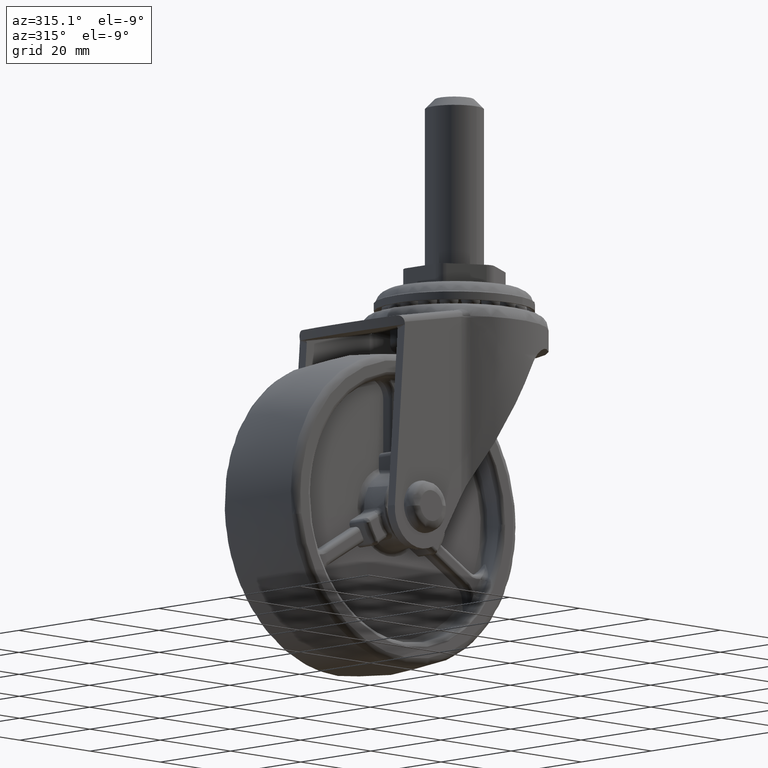
[diagram: clean part render]
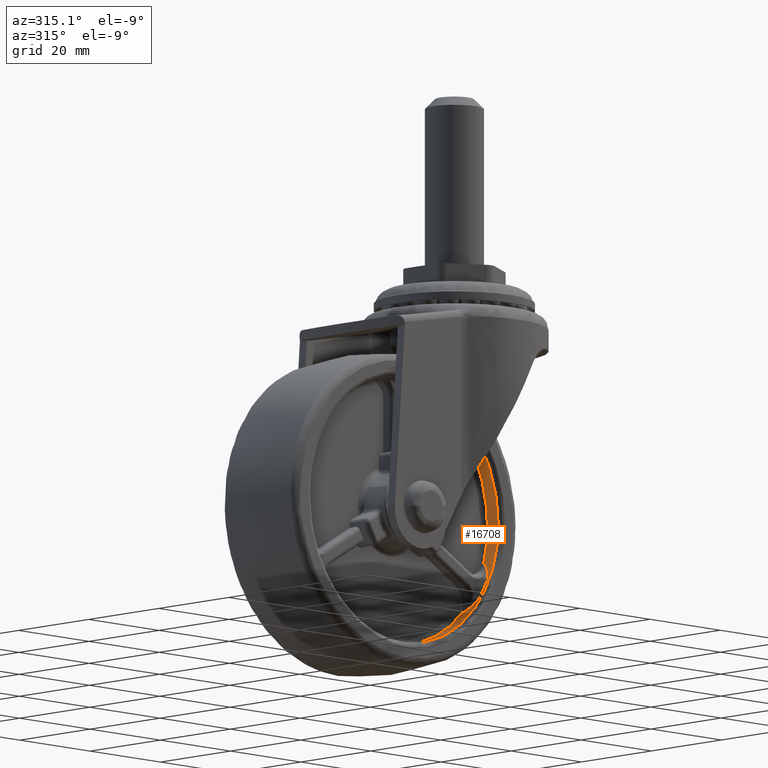
[diagram: same view with one face highlighted and labeled with its STEP entity id]
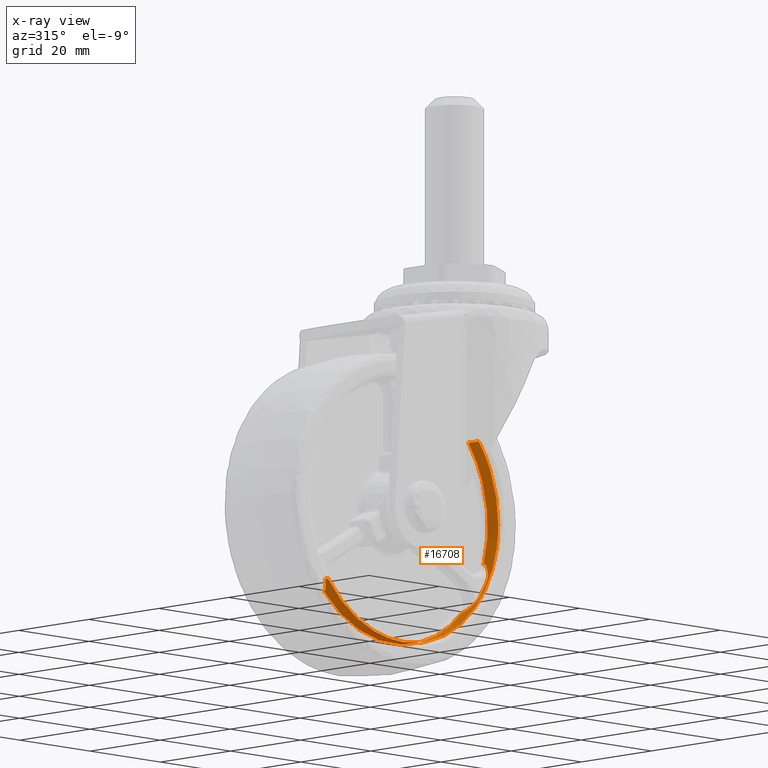
[diagram: x-ray of the same camera — body ghosted, the highlighted face saturated]
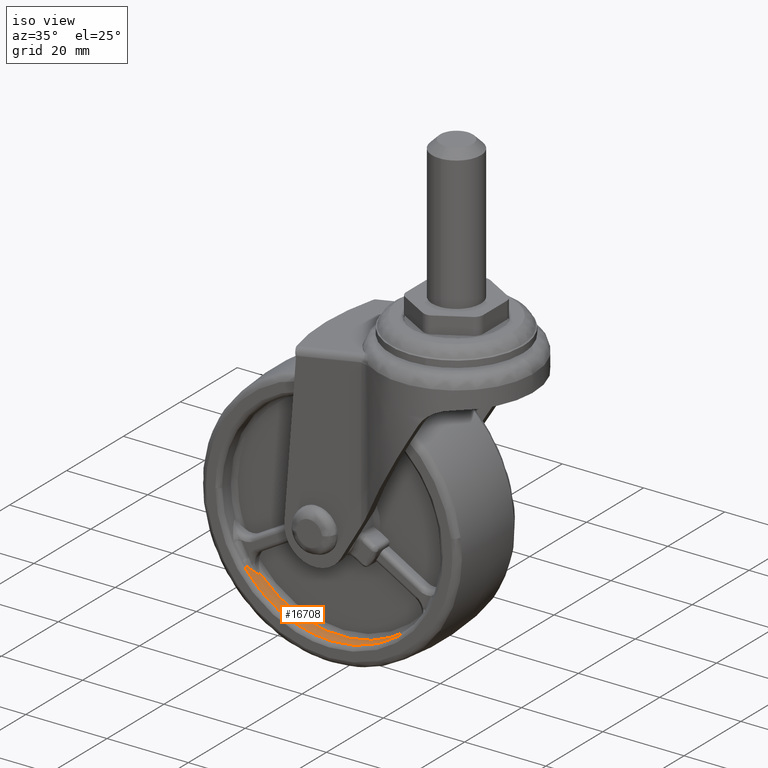
[diagram: same view with one face highlighted and labeled with its STEP entity id]
A machine part, auxiliary view. The second image highlights one B-rep face of the part: STEP entity #16708.
The next image is the same camera in x-ray: the body ghosted, the highlighted face saturated — about 0% of this face is hidden behind the body in this view.
A second angle (iso view) of the same face is appended — the face is thin or edge-on in the first view.
In plain terms, the highlighted face is a freeform B-spline surface patch.
Its self-contained STEP definition (entity closure, byte-faithful):
#10480=CARTESIAN_POINT('',(24.314308815177551,-9.0,-11.739437245463639));
#10481=VERTEX_POINT('',#10480);
#10512=CARTESIAN_POINT('',(22.323799195099749,-9.0,-15.187099443174150));
#10513=VERTEX_POINT('',#10512);
#10527=CARTESIAN_POINT('',(24.314308815177561,-9.0,-11.739437245463630));
#10528=CARTESIAN_POINT('',(23.446486003740588,-9.0,-13.536841277099638));
#10529=CARTESIAN_POINT('',(22.323799195099799,-9.0,-15.187099443174180));
#10537=(BOUNDED_CURVE()B_SPLINE_CURVE(2,(#10527,#10528,#10529),.UNSPECIFIED.,.F.,.U.)CURVE()GEOMETRIC_REPRESENTATION_ITEM()QUASI_UNIFORM_CURVE()RATIONAL_B_SPLINE_CURVE((1.0,0.997278790104865,1.0))REPRESENTATION_ITEM(''));
#10538=EDGE_CURVE('',#10481,#10513,#10537,.T.);
#10611=CARTESIAN_POINT('',(25.807665603181150,-7.0,-7.935011948771430));
#10612=VERTEX_POINT('',#10611);
#10613=CARTESIAN_POINT('',(25.807665603181150,-7.0,-7.935011948771430));
#10614=CARTESIAN_POINT('',(25.802129890280781,-7.015203882987389,-7.953015018199283));
#10615=CARTESIAN_POINT('',(25.796619912489721,-7.030703090561617,-7.970869029868775));
#10616=CARTESIAN_POINT('',(25.785517455835461,-7.061427823512074,-8.006712280055183));
#10617=CARTESIAN_POINT('',(25.779946365425420,-7.076784227081131,-8.024631937284166));
#10618=CARTESIAN_POINT('',(25.763172699101219,-7.122832293255065,-8.078387327224073));
#10619=CARTESIAN_POINT('',(25.729382989627009,-7.214840722985296,-8.185886001458622));
#10620=CARTESIAN_POINT('',(25.694810751784111,-7.306350593197273,-8.293517315905694));
#10621=CARTESIAN_POINT('',(25.624456651385909,-7.488060711746104,-8.509414637808790));
#10622=CARTESIAN_POINT('',(25.575945982996029,-7.607452488573165,-8.654195806475988));
#10623=CARTESIAN_POINT('',(25.474701959788330,-7.839334756970790,-8.947830912680166));
#10624=CARTESIAN_POINT('',(25.421969928375471,-7.951828717158812,-9.096682532855812));
#10625=CARTESIAN_POINT('',(25.338820079841309,-8.112855889945807,-9.324738280355575));
#10626=CARTESIAN_POINT('',(25.310395530984120,-8.165294126469165,-9.401633625734950));
#10627=CARTESIAN_POINT('',(25.252338250596221,-8.266637154999676,-9.556476842690813));
#10628=CARTESIAN_POINT('',(25.222679199227439,-8.315598230912491,-9.634498894374161));
#10629=CARTESIAN_POINT('',(25.070955281431289,-8.550824701972889,-10.028012774317441));
#10630=CARTESIAN_POINT('',(24.938755279428879,-8.708700494791369,-10.353602832241871));
#10631=CARTESIAN_POINT('',(24.754407912068380,-8.849971205522103,-10.780906818485480));
#10632=CARTESIAN_POINT('',(24.716521820040580,-8.875391763134987,-10.867498064128540));
#10633=CARTESIAN_POINT('',(24.639694266853368,-8.919399489301833,-11.040581121044900));
#10634=CARTESIAN_POINT('',(24.600637991223039,-8.938086873005618,-11.127342790335989));
#10635=CARTESIAN_POINT('',(24.481465992086509,-8.983607666412324,-11.388345423006230));
#10636=CARTESIAN_POINT('',(24.399355206363701,-9.0,-11.563292156420680));
#10637=CARTESIAN_POINT('',(24.314308815177551,-9.0,-11.739437245463639));
#10638=B_SPLINE_CURVE_WITH_KNOTS('',3,(#10613,#10614,#10615,#10616,#10617,#10618,#10619,#10620,#10621,#10622,#10623,#10624,#10625,#10626,#10627,#10628,#10629,#10630,#10631,#10632,#10633,#10634,#10635,#10636,#10637),.UNSPECIFIED.,.F.,.U.,(4,2,2,1,2,2,2,2,2,2,2,2,4),(0.0,0.015625000000000,0.031250000000000,0.062500000000001,0.125000000000001,0.250000000000002,0.375000000000003,0.437500000000004,0.500000000000004,0.750000000000004,0.812500000000003,0.875000000000003,1.0),.UNSPECIFIED.);
#10639=EDGE_CURVE('',#10612,#10481,#10638,.T.);
#10920=CARTESIAN_POINT('',(25.807665603181150,-6.500000000000000,-7.935011948771430));
#10921=VERTEX_POINT('',#10920);
#10922=CARTESIAN_POINT('',(25.807665603181150,-6.500000000000000,-7.935011948771430));
#10923=CARTESIAN_POINT('',(25.807665603181150,-7.0,-7.935011948771430));
#10924=QUASI_UNIFORM_CURVE('',1,(#10922,#10923),.UNSPECIFIED.,.F.,.U.);
#10925=EDGE_CURVE('',#10921,#10612,#10924,.T.);
#11196=CARTESIAN_POINT('',(21.446615221020121,-6.499999999999920,16.402521012367391));
#11197=VERTEX_POINT('',#11196);
#11198=CARTESIAN_POINT('',(25.807665603181150,-6.500000000000000,-7.935011948771430));
#11199=CARTESIAN_POINT('',(29.265396933037181,-6.499999999999920,3.310841710820067));
#11200=CARTESIAN_POINT('',(23.382688138219880,-6.499999999999921,13.499996127052979));
#11201=CARTESIAN_POINT('',(22.508615338193486,-6.499999999999921,15.013935205313031));
#11202=CARTESIAN_POINT('',(21.446615221020124,-6.499999999999921,16.402521012367391));
#11210=(BOUNDED_CURVE()B_SPLINE_CURVE(2,(#11198,#11199,#11200,#11201,#11202),.UNSPECIFIED.,.F.,.U.)B_SPLINE_CURVE_WITH_KNOTS((3,2,3),(0.0,0.500000000000000,0.579959727125643),.UNSPECIFIED.)CURVE()GEOMETRIC_REPRESENTATION_ITEM()RATIONAL_B_SPLINE_CURVE((1.0,0.916743341161455,1.0,0.986685640555754,0.977629731303567))REPRESENTATION_ITEM(''));
#11211=EDGE_CURVE('',#10921,#11197,#11210,.T.);
#11365=CARTESIAN_POINT('',(-19.775754477459650,-6.500000000000000,-18.382587816932499));
#11366=VERTEX_POINT('',#11365);
#11397=CARTESIAN_POINT('',(19.775746493644750,-6.500000000000000,-18.382592607123751));
#11398=VERTEX_POINT('',#11397);
#11399=CARTESIAN_POINT('',(-19.775754477459650,-6.500000000000000,-18.382587816932499));
#11400=CARTESIAN_POINT('',(-18.516913265081499,-6.499999999999993,-19.737256627244530));
#11401=CARTESIAN_POINT('',(-16.243790912241899,-6.500000000000008,-21.726908366354291));
#11402=CARTESIAN_POINT('',(-12.891242668102770,-6.500000000000000,-23.792483002903779));
#11403=CARTESIAN_POINT('',(-9.849908411726331,-6.499999999999989,-25.211811183754630));
#11404=CARTESIAN_POINT('',(-6.819981053291165,-6.500000000000010,-26.197877950632169));
#11405=CARTESIAN_POINT('',(-3.239045934259169,-6.499999999999991,-26.884405642690300));
#11406=CARTESIAN_POINT('',(0.695705631955457,-6.500000000000040,-27.112195812597999));
#11407=CARTESIAN_POINT('',(4.848769515196429,-6.499999999999861,-26.670475436309239));
#11408=CARTESIAN_POINT('',(8.319093552807333,-6.500000000000409,-25.746993006795240));
#11409=CARTESIAN_POINT('',(11.552044385932270,-6.499999999999756,-24.484061743049072));
#11410=CARTESIAN_POINT('',(15.474878219554220,-6.500000000000252,-22.353343365267431));
#11411=CARTESIAN_POINT('',(18.280982030470451,-6.499999999999909,-19.991398267899189));
#11412=CARTESIAN_POINT('',(19.775746493644750,-6.500000000000000,-18.382592607123751));
#11413=B_SPLINE_CURVE_WITH_KNOTS('',3,(#11399,#11400,#11401,#11402,#11403,#11404,#11405,#11406,#11407,#11408,#11409,#11410,#11411,#11412),.UNSPECIFIED.,.F.,.U.,(4,1,1,1,1,1,1,1,1,1,1,4),(0.000000078928899,5.547751425199351,9.015131694738329,11.789036154244810,15.603136088926121,18.550398971588741,22.711194548025869,27.392135171767059,31.032892653931391,33.460048046666067,37.794256695975513,44.382238997541407),.UNSPECIFIED.);
#11414=EDGE_CURVE('',#11366,#11398,#11413,.T.);
#12006=CARTESIAN_POINT('',(19.775746493644750,-7.0,-18.382592607123751));
#12007=VERTEX_POINT('',#12006);
#12041=CARTESIAN_POINT('',(22.323799195099749,-9.0,-15.187099443174150));
#12042=CARTESIAN_POINT('',(22.213776374727988,-9.000000000000002,-15.348823852780541));
#12043=CARTESIAN_POINT('',(22.103323555633150,-8.983607757218804,-15.507406792345320));
#12044=CARTESIAN_POINT('',(21.936874797079540,-8.938087218152562,-15.741113428685710));
#12045=CARTESIAN_POINT('',(21.881265175429181,-8.919399939217399,-15.818317774286470));
#12046=CARTESIAN_POINT('',(21.769784727004460,-8.875392462415045,-15.971393490753270));
#12047=CARTESIAN_POINT('',(21.713737603108950,-8.849972050086159,-16.047499223167879));
#12048=CARTESIAN_POINT('',(21.435855365558719,-8.708702129389536,-16.420799772195821));
#12049=CARTESIAN_POINT('',(21.219986199607881,-8.550827207454825,-16.698082732788691));
#12050=CARTESIAN_POINT('',(20.955055148860520,-8.315602219018000,-17.026235825402299));
#12051=CARTESIAN_POINT('',(20.902315591183928,-8.266641460816032,-17.090932229381622));
#12052=CARTESIAN_POINT('',(20.797246046753848,-8.165299122514446,-17.218632711964808));
#12053=CARTESIAN_POINT('',(20.744865047466231,-8.112861335639988,-17.281696593185082));
#12054=CARTESIAN_POINT('',(20.588936843487708,-7.951834384111154,-17.467735258756981));
#12055=CARTESIAN_POINT('',(20.486391667302399,-7.839339367194409,-17.587830360666182));
#12056=CARTESIAN_POINT('',(20.282712553296971,-7.607453608909212,-17.822333744597799));
#12057=CARTESIAN_POINT('',(20.181580144039689,-7.488059042332267,-17.936739527240590));
#12058=CARTESIAN_POINT('',(20.029776752511118,-7.306347611596008,-18.105624752439230));
#12059=CARTESIAN_POINT('',(19.979157133076729,-7.245340462247507,-18.161464941934110));
#12060=CARTESIAN_POINT('',(19.903039652724509,-7.153504539315974,-18.244733331080791));
#12061=CARTESIAN_POINT('',(19.877636296858508,-7.122837305753526,-18.272406835340909));
#12062=CARTESIAN_POINT('',(19.839457984757200,-7.076807167988544,-18.313823286550669));
#12063=CARTESIAN_POINT('',(19.826720777664669,-7.061456739951728,-18.327611934068429));
#12064=CARTESIAN_POINT('',(19.807582358949791,-7.038451631043128,-18.348286880031679));
#12065=CARTESIAN_POINT('',(19.801199669585351,-7.030782367252052,-18.355174804368598));
#12066=CARTESIAN_POINT('',(19.791593801465400,-7.019329684861542,-18.365530164047630));
#12067=CARTESIAN_POINT('',(19.788390865815462,-7.015512242736664,-18.368981209082541));
#12068=CARTESIAN_POINT('',(19.783532376574090,-7.009888629432290,-18.374213266359739));
#12069=CARTESIAN_POINT('',(19.781840451761148,-7.008145131404138,-18.376035318253820));
#12070=CARTESIAN_POINT('',(19.778792181576879,-7.004072565570342,-18.379312762717120));
#12071=CARTESIAN_POINT('',(19.777270170210290,-7.002036282870120,-18.380953458737810));
#12072=CARTESIAN_POINT('',(19.775746493644750,-7.0,-18.382592607123751));
#12073=B_SPLINE_CURVE_WITH_KNOTS('',3,(#12041,#12042,#12043,#12044,#12045,#12046,#12047,#12048,#12049,#12050,#12051,#12052,#12053,#12054,#12055,#12056,#12057,#12058,#12059,#12060,#12061,#12062,#12063,#12064,#12065,#12066,#12067,#12068,#12069,#12070,#12071,#12072),.UNSPECIFIED.,.F.,.U.,(4,2,2,2,2,2,2,2,2,2,2,2,2,2,2,4),(0.0,0.124999999999999,0.187500000000000,0.250000000000000,0.499999999999999,0.562499999999999,0.624999999999999,0.749999999999998,0.874999999999997,0.937499999999997,0.968749999999997,0.984374999999997,0.992187499999997,0.996093749999998,0.998046874999999,1.0),.UNSPECIFIED.);
#12074=EDGE_CURVE('',#10513,#12007,#12073,.T.);
#12371=CARTESIAN_POINT('',(-21.446609938769530,-8.699896832740024,-16.402540658804401));
#12372=VERTEX_POINT('',#12371);
#12386=CARTESIAN_POINT('',(-19.775754477459650,-7.0,-18.382587816932499));
#12387=VERTEX_POINT('',#12386);
#12388=CARTESIAN_POINT('',(-19.775754477459650,-7.0,-18.382587816932499));
#12389=CARTESIAN_POINT('',(-19.788577939822300,-7.015203882998453,-18.368792411112970));
#12390=CARTESIAN_POINT('',(-19.801284930761341,-7.030703090580680,-18.355093587961878));
#12391=CARTESIAN_POINT('',(-19.826774772025772,-7.061427823553375,-18.327556880246089));
#12392=CARTESIAN_POINT('',(-19.839508057394681,-7.076784227133188,-18.313772309250488));
#12393=CARTESIAN_POINT('',(-19.877674614065079,-7.122832293339259,-18.272368083447262));
#12394=CARTESIAN_POINT('',(-19.953876055174820,-7.214840723133265,-18.189355780157829));
#12395=CARTESIAN_POINT('',(-20.029801101789019,-7.306350593408797,-18.105599467235290));
#12396=CARTESIAN_POINT('',(-20.181596042684539,-7.488060712084877,-17.936721928967732));
#12397=CARTESIAN_POINT('',(-20.282724495361851,-7.607452488996802,-17.822319580462452));
#12398=CARTESIAN_POINT('',(-20.486397177586330,-7.839334757564396,-17.587821544364481));
#12399=CARTESIAN_POINT('',(-20.588940061942811,-7.951828717837529,-17.467728161555229));
#12400=CARTESIAN_POINT('',(-20.744866630542500,-8.112855890752487,-17.281689964741030));
#12401=CARTESIAN_POINT('',(-20.797247485576410,-8.165294127318587,-17.218625763024630));
#12402=CARTESIAN_POINT('',(-20.902316620255640,-8.266637155934253,-17.090924780770351));
#12403=CARTESIAN_POINT('',(-20.955055981647071,-8.315598231889515,-17.026228116383962));
#12404=CARTESIAN_POINT('',(-21.152153664236810,-8.490597569285667,-16.782093989563069));
#12405=CARTESIAN_POINT('',(-21.298079720371991,-8.604540408389987,-16.596766418433671));
#12406=CARTESIAN_POINT('',(-21.446609938769530,-8.699896832740024,-16.402540658804401));
#12407=B_SPLINE_CURVE_WITH_KNOTS('',3,(#12388,#12389,#12390,#12391,#12392,#12393,#12394,#12395,#12396,#12397,#12398,#12399,#12400,#12401,#12402,#12403,#12404,#12405,#12406),.UNSPECIFIED.,.F.,.U.,(4,2,2,1,2,2,2,2,2,4),(0.0,0.015624999999999,0.031249999999999,0.062500000000000,0.125000000000000,0.249999999999999,0.374999999999998,0.437499999999998,0.499999999999999,0.669987834556137),.UNSPECIFIED.);
#12408=EDGE_CURVE('',#12387,#12372,#12407,.T.);
#14158=CARTESIAN_POINT('',(-19.775754477459650,-6.500000000000000,-18.382587816932499));
#14159=CARTESIAN_POINT('',(-19.775754477459650,-7.0,-18.382587816932499));
#14160=QUASI_UNIFORM_CURVE('',1,(#14158,#14159),.UNSPECIFIED.,.F.,.U.);
#14161=EDGE_CURVE('',#11366,#12387,#14160,.T.);
#14254=CARTESIAN_POINT('',(19.775746493644750,-6.500000000000000,-18.382592607123751));
#14255=CARTESIAN_POINT('',(19.775746493644750,-7.0,-18.382592607123751));
#14256=QUASI_UNIFORM_CURVE('',1,(#14254,#14255),.UNSPECIFIED.,.F.,.U.);
#14257=EDGE_CURVE('',#11398,#12007,#14256,.T.);
#16622=CARTESIAN_POINT('',(-21.446603789289039,-6.424999999928327,-16.402535959578088));
#16623=CARTESIAN_POINT('',(-5.044067829710951,-6.424999999928328,-37.849139748867131));
#16624=CARTESIAN_POINT('',(16.402535959578088,-6.424999999928327,-21.446603789289039));
#16625=CARTESIAN_POINT('',(37.849139748867131,-6.424999999928328,-5.044067829710951));
#16626=CARTESIAN_POINT('',(21.446603789289039,-6.424999999928327,16.402535959578088));
#16627=CARTESIAN_POINT('',(-21.446603789289039,-9.576875002936982,-16.402535959578088));
#16628=CARTESIAN_POINT('',(-5.044067829710951,-9.576875002936982,-37.849139748867131));
#16629=CARTESIAN_POINT('',(16.402535959578088,-9.576875002936982,-21.446603789289039));
#16630=CARTESIAN_POINT('',(37.849139748867131,-9.576875002936982,-5.044067829710951));
#16631=CARTESIAN_POINT('',(21.446603789289039,-9.576875002936982,16.402535959578088));
#16639=(BOUNDED_SURFACE()B_SPLINE_SURFACE(2,1,((#16622,#16627),(#16623,#16628),(#16624,#16629),(#16625,#16630),(#16626,#16631)),.UNSPECIFIED.,.F.,.F.,.U.)B_SPLINE_SURFACE_WITH_KNOTS((3,2,3),(2,2),(0.0,44.735064736294262,89.470129472588511),(0.0,3.151875003008654),.UNSPECIFIED.)GEOMETRIC_REPRESENTATION_ITEM()RATIONAL_B_SPLINE_SURFACE(((1.0,1.0),(0.707106781186548,0.707106781186548),(1.0,1.0),(0.707106781186548,0.707106781186548),(1.0,1.0)))REPRESENTATION_ITEM('')SURFACE());
#16640=CARTESIAN_POINT('',(-21.446607107591259,-9.500000002428866,-16.402531620837859));
#16641=VERTEX_POINT('',#16640);
#16642=CARTESIAN_POINT('',(0.0,-9.500000000000000,-27.0));
#16643=VERTEX_POINT('',#16642);
#16644=CARTESIAN_POINT('',(-21.446607107591262,-9.500000002428864,-16.402531620837852));
#16645=CARTESIAN_POINT('',(-13.341581015678624,-9.500000001072289,-26.999999999999829));
#16646=CARTESIAN_POINT('',(0.0,-9.500000000000000,-27.0));
#16654=(BOUNDED_CURVE()B_SPLINE_CURVE(2,(#16644,#16645,#16646),.UNSPECIFIED.,.F.,.U.)B_SPLINE_CURVE_WITH_KNOTS((3,3),(0.854979925362961,1.0),.UNSPECIFIED.)CURVE()GEOMETRIC_REPRESENTATION_ITEM()RATIONAL_B_SPLINE_CURVE((0.857309953619229,0.830098414187962,1.0))REPRESENTATION_ITEM(''));
#16655=EDGE_CURVE('',#16641,#16643,#16654,.T.);
#16656=ORIENTED_EDGE('',*,*,#16655,.T.);
#16657=CARTESIAN_POINT('',(27.0,-9.500000002863599,-5.327543E-015));
#16658=VERTEX_POINT('',#16657);
#16659=CARTESIAN_POINT('',(0.0,-9.500000000000000,-27.0));
#16660=CARTESIAN_POINT('',(26.999999999999996,-9.500000001431801,-27.000000000000011));
#16661=CARTESIAN_POINT('',(27.0,-9.500000002863599,-5.327543E-015));
#16669=(BOUNDED_CURVE()B_SPLINE_CURVE(2,(#16659,#16660,#16661),.UNSPECIFIED.,.F.,.U.)B_SPLINE_CURVE_WITH_KNOTS((3,3),(0.0,0.250000000000000),.UNSPECIFIED.)CURVE()GEOMETRIC_REPRESENTATION_ITEM()RATIONAL_B_SPLINE_CURVE((1.0,0.707106781186548,1.0))REPRESENTATION_ITEM(''));
#16670=EDGE_CURVE('',#16643,#16658,#16669,.T.);
#16671=ORIENTED_EDGE('',*,*,#16670,.T.);
#16672=CARTESIAN_POINT('',(21.446607250960540,-9.500000001700784,16.402531433379838));
#16673=VERTEX_POINT('',#16672);
#16674=CARTESIAN_POINT('',(26.999999999999996,-9.500000002863599,-5.327543E-015));
#16675=CARTESIAN_POINT('',(26.999999999999758,-9.500000002379585,9.141369722901938));
#16676=CARTESIAN_POINT('',(21.446607250960543,-9.500000001700784,16.402531433379849));
#16684=(BOUNDED_CURVE()B_SPLINE_CURVE(2,(#16674,#16675,#16676),.UNSPECIFIED.,.F.,.U.)B_SPLINE_CURVE_WITH_KNOTS((3,3),(0.250000000000000,0.354979924038289),.UNSPECIFIED.)CURVE()GEOMETRIC_REPRESENTATION_ITEM()RATIONAL_B_SPLINE_CURVE((1.000000000000000,0.877008368550535,0.857309954116351))REPRESENTATION_ITEM(''));
#16685=EDGE_CURVE('',#16658,#16673,#16684,.T.);
#16686=ORIENTED_EDGE('',*,*,#16685,.T.);
#16687=CARTESIAN_POINT('',(21.446615221020121,-6.499999999999920,16.402521012367391));
#16688=CARTESIAN_POINT('',(21.446607250960540,-9.500000001700784,16.402531433379838));
#16689=QUASI_UNIFORM_CURVE('',1,(#16687,#16688),.UNSPECIFIED.,.F.,.U.);
#16690=EDGE_CURVE('',#11197,#16673,#16689,.T.);
#16691=ORIENTED_EDGE('',*,*,#16690,.F.);
#16692=ORIENTED_EDGE('',*,*,#11211,.F.);
#16693=ORIENTED_EDGE('',*,*,#10925,.T.);
#16694=ORIENTED_EDGE('',*,*,#10639,.T.);
#16695=ORIENTED_EDGE('',*,*,#10538,.T.);
#16696=ORIENTED_EDGE('',*,*,#12074,.T.);
#16697=ORIENTED_EDGE('',*,*,#14257,.F.);
#16698=ORIENTED_EDGE('',*,*,#11414,.F.);
#16699=ORIENTED_EDGE('',*,*,#14161,.T.);
#16700=ORIENTED_EDGE('',*,*,#12408,.T.);
#16701=CARTESIAN_POINT('',(-21.446609938769530,-8.699896832740024,-16.402540658804401));
#16702=CARTESIAN_POINT('',(-21.446607107591259,-9.500000002428866,-16.402531620837859));
#16703=QUASI_UNIFORM_CURVE('',1,(#16701,#16702),.UNSPECIFIED.,.F.,.U.);
#16704=EDGE_CURVE('',#12372,#16641,#16703,.T.);
#16705=ORIENTED_EDGE('',*,*,#16704,.T.);
#16706=EDGE_LOOP('',(#16656,#16671,#16686,#16691,#16692,#16693,#16694,#16695,#16696,#16697,#16698,#16699,#16700,#16705));
#16707=FACE_OUTER_BOUND('',#16706,.T.);
#16708=ADVANCED_FACE('',(#16707),#16639,.F.);